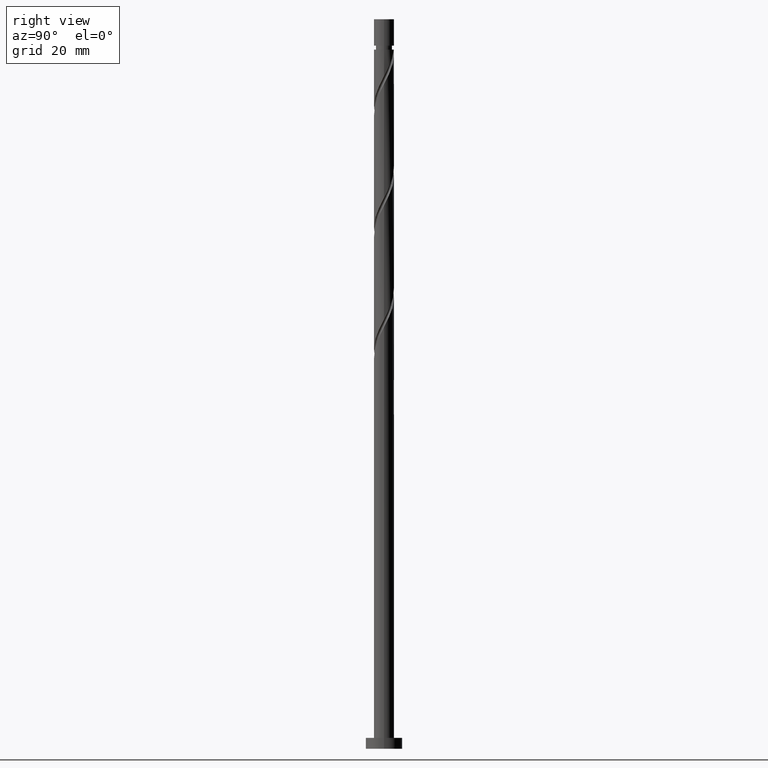
[diagram: clean part render]
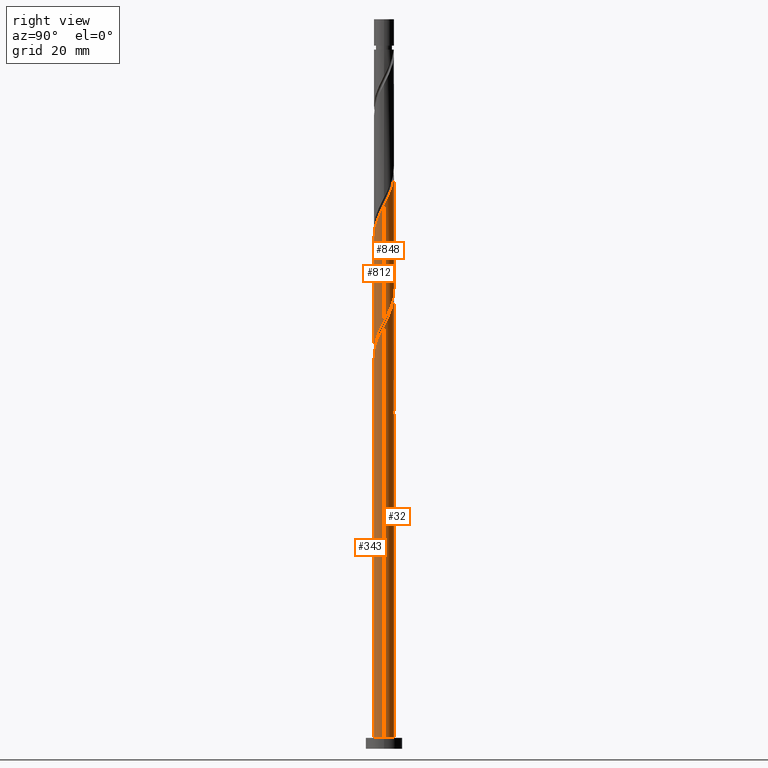
[diagram: same view with one multi-face feature highlighted, each face labeled with its STEP entity id]
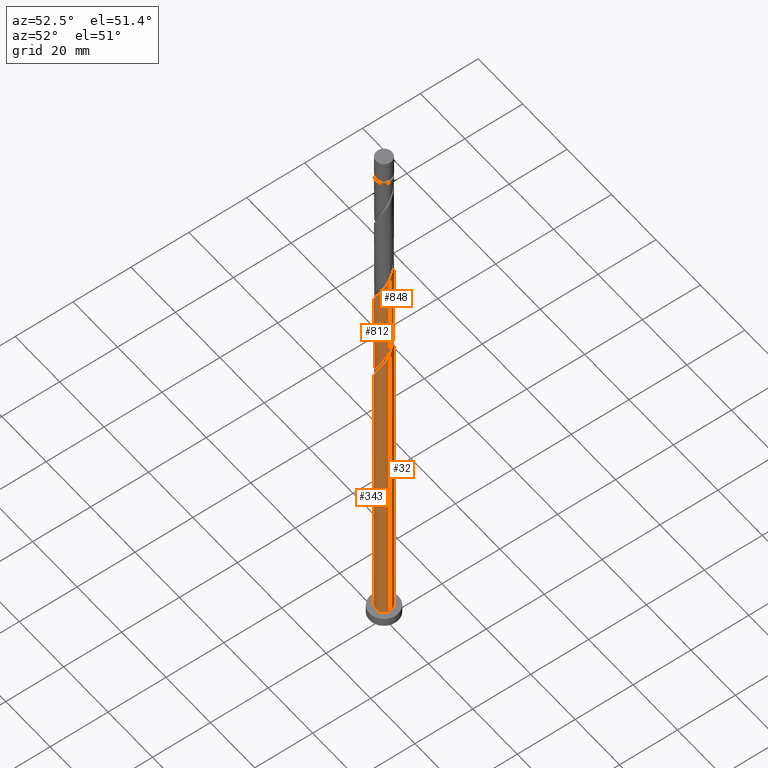
[diagram: same view with one multi-face feature highlighted, each face labeled with its STEP entity id]
A machine part, right view. The highlighted faces form ONE feature: a constant-radius fillet chain: 4 tangent blend faces with common blend radius 2.75 mm. The faces share edges in the B-rep.
A second angle (auxiliary view) of the same feature is appended — it is thin or edge-on in the first view.
Their STEP definitions:
[1] entity #848 (Cylinder):
#24 = ORIENTED_EDGE ( 'NONE', *, *, #1614, .F. ) ;
#40 = CARTESIAN_POINT ( 'NONE',  ( -2.750000000000001332, -1.166395186602363557E-14, 134.3802064279583419 ) ) ;
#64 =( BOUNDED_CURVE ( )  B_SPLINE_CURVE ( 2, ( #1214, #1617, #945, #1195, #1100, #691, #1204, #1188, #586, #960, #115, #435, #1313, #565, #419, #275, #817, #673, #1738, #1609, #1480, #834, #401, #257, #1340, #143, #1380 ),
 .UNSPECIFIED., .F., .T. ) 
 B_SPLINE_CURVE_WITH_KNOTS ( ( 3, 2, 2, 2, 2, 2, 2, 2, 2, 2, 2, 2, 2, 3 ),
 ( 0.4295317669814461836, 0.4375000000000000000, 0.4479166666666666297, 0.4583333333333333703, 0.4687500000000000000, 0.4791666666666666297, 0.4895833333333333703, 0.5000000000000000000, 0.5104166666666667407, 0.5208333333333332593, 0.5312500000000000000, 0.5416666666666667407, 0.5520833333333332593, 0.5545317669814461281 ),
 .UNSPECIFIED. ) 
 CURVE ( )  GEOMETRIC_REPRESENTATION_ITEM ( )  RATIONAL_B_SPLINE_CURVE ( ( 0.9062941362546527158, 0.9031415850403567980, 0.9090909090909321533, 0.9013135103398507431, 0.9090909090909321533, 0.9013135103398507431, 0.9090909090909321533, 0.9013135103398507431, 0.9090909090909321533, 0.9013135103398507431, 0.9090909090909321533, 0.9013135103398507431, 0.9090909090909321533, 0.9013135103398507431, 0.9090909090909321533, 0.9013135103398507431, 0.9090909090909321533, 0.9013135103398507431, 0.9090909090909321533, 0.9013135103398507431, 0.9090909090909321533, 0.9013135103398507431, 0.9090909090909321533, 0.9013135103398507431, 0.9090909090909321533, 0.9072628343904260984, 0.9062941362546527158 ) ) 
 REPRESENTATION_ITEM ( '' )  );
#84 = LINE ( 'NONE', #666, #1278 ) ;
#107 = CARTESIAN_POINT ( 'NONE',  ( 2.292612075483179801, 1.518693475112311342, 120.8166397727483172 ) ) ;
#115 = CARTESIAN_POINT ( 'NONE',  ( 0.8735735816606146065, 2.607560008403386753, 155.5388619949704889 ) ) ;
#140 = CARTESIAN_POINT ( 'NONE',  ( 2.750000000000000000, 3.367778697655221012E-16, 200.0000000000000000 ) ) ;
#143 = CARTESIAN_POINT ( 'NONE',  ( -2.750000000000004441, 0.08454036705860550061, 165.4232427628434436 ) ) ;
#160 = VERTEX_POINT ( 'NONE', #40 ) ;
#164 = EDGE_LOOP ( 'NONE', ( #1665, #917, #24, #755 ) ) ;
#210 = CARTESIAN_POINT ( 'NONE',  ( 2.750000000000003553, 6.131051621884181854E-16, 148.9197397842048360 ) ) ;
#257 = CARTESIAN_POINT ( 'NONE',  ( -2.722568152255372631, 0.5302817939452966201, 164.5666397727482320 ) ) ;
#274 = EDGE_CURVE ( 'NONE', #488, #160, #84, .T. ) ;
#275 = CARTESIAN_POINT ( 'NONE',  ( -0.9020465714066749907, 2.622954080360260232, 159.0110842171927175 ) ) ;
#291 = CARTESIAN_POINT ( 'NONE',  ( -0.8735735816606112758, 2.607560008403384089, 127.7610842171927317 ) ) ;
#401 = CARTESIAN_POINT ( 'NONE',  ( -2.607560008403386753, 0.8735735816606137183, 163.8721953283038886 ) ) ;
#419 = CARTESIAN_POINT ( 'NONE',  ( -0.5472430904086420522, 2.695000000000005169, 158.3166397727483172 ) ) ;
#421 = CARTESIAN_POINT ( 'NONE',  ( 1.550180550263816404, 2.300112255140785766, 122.8999731060816032 ) ) ;
#429 = CARTESIAN_POINT ( 'NONE',  ( 0.1924396094106104460, 2.767045919639743445, 125.6777508838594031 ) ) ;
#435 = CARTESIAN_POINT ( 'NONE',  ( 0.5302817939452983964, 2.722568152255372631, 156.2333064394149176 ) ) ;
#440 = CARTESIAN_POINT ( 'NONE',  ( 2.750000000000001332, 0.08454036705859847844, 117.8767034493198338 ) ) ;
#488 = VERTEX_POINT ( 'NONE', #830 ) ;
#504 = EDGE_CURVE ( 'NONE', #1331, #1015, #687, .T. ) ;
#527 = CARTESIAN_POINT ( 'NONE',  ( 2.750000000000000888, 3.289832577596409831E-15, 117.7135397612916847 ) ) ;
#556 = CARTESIAN_POINT ( 'NONE',  ( -0.5302817939452952878, 2.722568152255369078, 127.0666397727482604 ) ) ;
#565 = CARTESIAN_POINT ( 'NONE',  ( -0.1924396094106074206, 2.767045919639746554, 157.6221953283038602 ) ) ;
#579 = CARTESIAN_POINT ( 'NONE',  ( -1.820521580848695642, 2.092672286414962723, 129.8444175505260034 ) ) ;
#586 = CARTESIAN_POINT ( 'NONE',  ( 1.518693475112315117, 2.292612075483182910, 154.1499731060816316 ) ) ;
#621 = CARTESIAN_POINT ( 'NONE',  ( 2.722568152255369078, 0.5302817939452935114, 118.7333064394149602 ) ) ;
#623 = AXIS2_PLACEMENT_3D ( 'NONE', #914, #1148, #1694 ) ;
#666 = CARTESIAN_POINT ( 'NONE',  ( -2.750000000000000000, 0.000000000000000000, 200.0000000000000000 ) ) ;
#668 = CARTESIAN_POINT ( 'NONE',  ( -2.750000000000001332, 0.2763853991962823553, 133.8467800587690419 ) ) ;
#673 = CARTESIAN_POINT ( 'NONE',  ( -1.550180550263816848, 2.300112255140789763, 160.3999731060816032 ) ) ;
#683 = CARTESIAN_POINT ( 'NONE',  ( -2.461533167750521223, 1.226113560835245142, 131.9277508838593747 ) ) ;
#687 = LINE ( 'NONE', #140, #1078 ) ;
#691 = CARTESIAN_POINT ( 'NONE',  ( 2.300112255140790651, 1.550180550263815071, 152.0666397727482320 ) ) ;
#731 = CARTESIAN_POINT ( 'NONE',  ( 2.607560008403384089, 0.8735735816606096105, 119.4277508838594031 ) ) ;
#739 = CARTESIAN_POINT ( 'NONE',  ( 2.750000000000000888, 3.289832577596409831E-15, 117.7135397612916705 ) ) ;
#750 = CARTESIAN_POINT ( 'NONE',  ( 2.744807035947557150, 0.1689210922673411164, 118.0388619949705316 ) ) ;
#755 = ORIENTED_EDGE ( 'NONE', *, *, #274, .F. ) ;
#817 = CARTESIAN_POINT ( 'NONE',  ( -1.226113560835246030, 2.461533167750526552, 159.7055286616372314 ) ) ;
#826 = CARTESIAN_POINT ( 'NONE',  ( -2.300112255140786655, 1.550180550263814627, 131.2333064394149176 ) ) ;
#827 = CYLINDRICAL_SURFACE ( 'NONE', #623, 2.750000000000000000 ) ;
#830 = CARTESIAN_POINT ( 'NONE',  ( -2.750000000000004441, -1.428086414365705300E-15, 165.5864064508715785 ) ) ;
#834 = CARTESIAN_POINT ( 'NONE',  ( -2.492551864551399543, 1.216865369375929928, 163.1777508838593747 ) ) ;
#837 = CARTESIAN_POINT ( 'NONE',  ( -1.216865369375927264, 2.492551864551396879, 128.4555286616371461 ) ) ;
#847 = CARTESIAN_POINT ( 'NONE',  ( 2.092672286414963168, 1.820521580848694976, 121.5110842171927032 ) ) ;
#848 = ADVANCED_FACE ( 'NONE', ( #1076 ), #827, .T. ) ;
#914 = CARTESIAN_POINT ( 'NONE',  ( 0.000000000000000000, 0.000000000000000000, 200.0000000000000000 ) ) ;
#917 = ORIENTED_EDGE ( 'NONE', *, *, #504, .T. ) ;
#922 = EDGE_CURVE ( 'NONE', #1331, #488, #64, .T. ) ;
#945 = CARTESIAN_POINT ( 'NONE',  ( 2.695000000000005169, 0.5472430904086422743, 149.9833064394149744 ) ) ;
#960 = CARTESIAN_POINT ( 'NONE',  ( 1.216865369375930817, 2.492551864551399543, 154.8444175505260603 ) ) ;
#1015 = VERTEX_POINT ( 'NONE', #527 ) ;
#1060 = CARTESIAN_POINT ( 'NONE',  ( -2.622954080360256679, 0.9020465714066743246, 132.6221953283038317 ) ) ;
#1075 = CARTESIAN_POINT ( 'NONE',  ( -0.1689210922673423654, 2.744807035947557150, 126.3721953283038459 ) ) ;
#1076 = FACE_OUTER_BOUND ( 'NONE', #164, .T. ) ;
#1078 = VECTOR ( 'NONE', #1497, 1000.000000000000000 ) ;
#1100 = CARTESIAN_POINT ( 'NONE',  ( 2.461533167750526552, 1.226113560835245364, 151.3721953283038886 ) ) ;
#1148 = DIRECTION ( 'NONE',  ( -0.000000000000000000, -0.000000000000000000, -1.000000000000000000 ) ) ;
#1177 = DIRECTION ( 'NONE',  ( -0.000000000000000000, -0.000000000000000000, -1.000000000000000000 ) ) ;
#1181 = CARTESIAN_POINT ( 'NONE',  ( 2.492551864551397767, 1.216865369375925265, 120.1221953283038175 ) ) ;
#1188 = CARTESIAN_POINT ( 'NONE',  ( 1.820521580848700527, 2.092672286414963168, 153.4555286616371745 ) ) ;
#1189 = CARTESIAN_POINT ( 'NONE',  ( -2.060316917994740926, 1.821426418339388675, 130.5388619949704889 ) ) ;
#1195 = CARTESIAN_POINT ( 'NONE',  ( 2.622954080360260676, 0.9020465714066738805, 150.6777508838594031 ) ) ;
#1204 = CARTESIAN_POINT ( 'NONE',  ( 2.060316917994746255, 1.821426418339390008, 152.7610842171926890 ) ) ;
#1214 = CARTESIAN_POINT ( 'NONE',  ( 2.750000000000003553, 6.131051621884181854E-16, 148.9197397842048076 ) ) ;
#1278 = VECTOR ( 'NONE', #1177, 1000.000000000000000 ) ;
#1313 = CARTESIAN_POINT ( 'NONE',  ( 0.1689210922673453630, 2.744807035947560259, 156.9277508838594883 ) ) ;
#1323 = CARTESIAN_POINT ( 'NONE',  ( -2.695000000000000284, 0.5472430904086426073, 133.3166397727482320 ) ) ;
#1331 = VERTEX_POINT ( 'NONE', #210 ) ;
#1332 = CARTESIAN_POINT ( 'NONE',  ( 0.9020465714066763230, 2.622954080360255791, 124.2888619949704889 ) ) ;
#1340 = CARTESIAN_POINT ( 'NONE',  ( -2.744807035947560259, 0.1689210922673436699, 165.2610842171927743 ) ) ;
#1380 = CARTESIAN_POINT ( 'NONE',  ( -2.750000000000004441, -1.428086414365705300E-15, 165.5864064508715785 ) ) ;
#1437 =( BOUNDED_CURVE ( )  B_SPLINE_CURVE ( 2, ( #1618, #668, #1323, #1060, #683, #826, #1189, #579, #1734, #837, #291, #556, #1075, #429, #1472, #1332, #1625, #421, #1481, #847, #107, #1181, #731, #621, #750, #440, #739 ),
 .UNSPECIFIED., .F., .T. ) 
 B_SPLINE_CURVE_WITH_KNOTS ( ( 3, 2, 2, 2, 2, 2, 2, 2, 2, 2, 2, 2, 2, 3 ),
 ( 0.6795317669814462391, 0.6875000000000000000, 0.6979166666666666297, 0.7083333333333333703, 0.7187500000000000000, 0.7291666666666666297, 0.7395833333333333703, 0.7500000000000000000, 0.7604166666666666297, 0.7708333333333333703, 0.7812500000000000000, 0.7916666666666666297, 0.8020833333333333703, 0.8045317669814463502 ),
 .UNSPECIFIED. ) 
 CURVE ( )  GEOMETRIC_REPRESENTATION_ITEM ( )  RATIONAL_B_SPLINE_CURVE ( ( 0.9062941362546469426, 0.9031415850403510248, 0.9090909090909264911, 0.9013135103398449699, 0.9090909090909264911, 0.9013135103398449699, 0.9090909090909264911, 0.9013135103398449699, 0.9090909090909264911, 0.9013135103398449699, 0.9090909090909264911, 0.9013135103398449699, 0.9090909090909264911, 0.9013135103398449699, 0.9090909090909264911, 0.9013135103398449699, 0.9090909090909264911, 0.9013135103398449699, 0.9090909090909264911, 0.9013135103398449699, 0.9090909090909264911, 0.9013135103398449699, 0.9090909090909264911, 0.9013135103398449699, 0.9090909090909264911, 0.9072628343904202142, 0.9062941362546468316 ) ) 
 REPRESENTATION_ITEM ( '' )  );
#1472 = CARTESIAN_POINT ( 'NONE',  ( 0.5472430904086429404, 2.695000000000000284, 124.9833064394149460 ) ) ;
#1480 = CARTESIAN_POINT ( 'NONE',  ( -2.292612075483183798, 1.518693475112314450, 162.4833064394149460 ) ) ;
#1481 = CARTESIAN_POINT ( 'NONE',  ( 1.821426418339390008, 2.060316917994740038, 122.2055286616371603 ) ) ;
#1497 = DIRECTION ( 'NONE',  ( -0.000000000000000000, -0.000000000000000000, -1.000000000000000000 ) ) ;
#1609 = CARTESIAN_POINT ( 'NONE',  ( -2.092672286414964500, 1.820521580848698751, 161.7888619949704605 ) ) ;
#1614 = EDGE_CURVE ( 'NONE', #160, #1015, #1437, .T. ) ;
#1617 = CARTESIAN_POINT ( 'NONE',  ( 2.750000000000005329, 0.2763853991962778034, 149.4531661533941360 ) ) ;
#1618 = CARTESIAN_POINT ( 'NONE',  ( -2.750000000000001332, -1.166395186602363557E-14, 134.3802064279583419 ) ) ;
#1625 = CARTESIAN_POINT ( 'NONE',  ( 1.226113560835246474, 2.461533167750521223, 123.5944175505260461 ) ) ;
#1665 = ORIENTED_EDGE ( 'NONE', *, *, #922, .F. ) ;
#1694 = DIRECTION ( 'NONE',  ( -1.000000000000000000, 0.000000000000000000, 0.000000000000000000 ) ) ;
#1734 = CARTESIAN_POINT ( 'NONE',  ( -1.518693475112312008, 2.292612075483179801, 129.1499731060816316 ) ) ;
#1738 = CARTESIAN_POINT ( 'NONE',  ( -1.821426418339391118, 2.060316917994744479, 161.0944175505260887 ) ) ;
[2] entity #812 (Cylinder):
#20 = CARTESIAN_POINT ( 'NONE',  ( 2.492551864551399099, -1.216865369375930817, 146.5110842171927175 ) ) ;
#63 = CARTESIAN_POINT ( 'NONE',  ( -0.9020465714066749907, -2.622954080360256679, 107.6221953283038175 ) ) ;
#73 = CARTESIAN_POINT ( 'NONE',  ( -2.722568152255369078, -0.5302817939452942886, 102.0666397727482604 ) ) ;
#90 = EDGE_CURVE ( 'NONE', #703, #682, #1520, .T. ) ;
#94 = CARTESIAN_POINT ( 'NONE',  ( 1.518693475112310676, -2.292612075483180689, 112.4833064394149460 ) ) ;
#109 = CYLINDRICAL_SURFACE ( 'NONE', #757, 2.750000000000000000 ) ;
#139 = CARTESIAN_POINT ( 'NONE',  ( 1.226113560835245364, -2.461533167750526552, 143.0388619949706026 ) ) ;
#140 = CARTESIAN_POINT ( 'NONE',  ( 2.750000000000000000, 3.367778697655221012E-16, 200.0000000000000000 ) ) ;
#148 = CARTESIAN_POINT ( 'NONE',  ( -2.060316917994744479, -1.821426418339390896, 136.0944175505260887 ) ) ;
#155 = CARTESIAN_POINT ( 'NONE',  ( -0.5302817939452966201, -2.722568152255372631, 139.5666397727482604 ) ) ;
#186 =( BOUNDED_CURVE ( )  B_SPLINE_CURVE ( 2, ( #1689, #1597, #1174, #1554, #1706, #1293, #517, #1166, #94, #762, #632, #1716, #1040, #526, #891, #63, #1049, #1576, #1408, #1584, #212, #769, #1276, #73, #1308, #1463, #570 ),
 .UNSPECIFIED., .F., .T. ) 
 B_SPLINE_CURVE_WITH_KNOTS ( ( 3, 2, 2, 2, 2, 2, 2, 2, 2, 2, 2, 2, 2, 3 ),
 ( 0.8045317669814463502, 0.8125000000000000000, 0.8229166666666666297, 0.8333333333333333703, 0.8437500000000000000, 0.8541666666666666297, 0.8645833333333333703, 0.8750000000000000000, 0.8854166666666666297, 0.8958333333333333703, 0.9062500000000000000, 0.9166666666666666297, 0.9270833333333333703, 0.9295317669814464612 ),
 .UNSPECIFIED. ) 
 CURVE ( )  GEOMETRIC_REPRESENTATION_ITEM ( )  RATIONAL_B_SPLINE_CURVE ( ( 0.9062941362546468316, 0.9031415850403511358, 0.9090909090909264911, 0.9013135103398449699, 0.9090909090909264911, 0.9013135103398449699, 0.9090909090909264911, 0.9013135103398449699, 0.9090909090909264911, 0.9013135103398449699, 0.9090909090909264911, 0.9013135103398449699, 0.9090909090909264911, 0.9013135103398449699, 0.9090909090909264911, 0.9013135103398449699, 0.9090909090909264911, 0.9013135103398449699, 0.9090909090909264911, 0.9013135103398449699, 0.9090909090909264911, 0.9013135103398449699, 0.9090909090909264911, 0.9013135103398449699, 0.9090909090909264911, 0.9072628343904202142, 0.9062941362546468316 ) ) 
 REPRESENTATION_ITEM ( '' )  );
#204 = CARTESIAN_POINT ( 'NONE',  ( -2.750000000000003553, 5.323547261928703378E-15, 132.2530731175381788 ) ) ;
#210 = CARTESIAN_POINT ( 'NONE',  ( 2.750000000000003553, 6.131051621884181854E-16, 148.9197397842048360 ) ) ;
#212 = CARTESIAN_POINT ( 'NONE',  ( -2.292612075483178913, -1.518693475112311564, 104.1499731060815890 ) ) ;
#253 = CARTESIAN_POINT ( 'NONE',  ( -2.461533167750526552, -1.226113560835245808, 134.7055286616372030 ) ) ;
#263 = CARTESIAN_POINT ( 'NONE',  ( -0.1689210922673437254, -2.744807035947560259, 140.2610842171927743 ) ) ;
#269 = CARTESIAN_POINT ( 'NONE',  ( -2.750000000000003553, 5.323547261928703378E-15, 132.2530731175381788 ) ) ;
#348 = ORIENTED_EDGE ( 'NONE', *, *, #1113, .F. ) ;
#398 = ORIENTED_EDGE ( 'NONE', *, *, #504, .F. ) ;
#412 = CARTESIAN_POINT ( 'NONE',  ( 0.1924396094106092248, -2.767045919639746554, 140.9555286616371745 ) ) ;
#422 = CARTESIAN_POINT ( 'NONE',  ( -1.216865369375930817, -2.492551864551399099, 138.1777508838593462 ) ) ;
#424 = VECTOR ( 'NONE', #892, 1000.000000000000000 ) ;
#504 = EDGE_CURVE ( 'NONE', #1331, #1015, #687, .T. ) ;
#517 = CARTESIAN_POINT ( 'NONE',  ( 2.060316917994740482, -1.821426418339390008, 113.8721953283038459 ) ) ;
#526 = CARTESIAN_POINT ( 'NONE',  ( -0.1924396094106113064, -2.767045919639743445, 109.0110842171927317 ) ) ;
#527 = CARTESIAN_POINT ( 'NONE',  ( 2.750000000000000888, 3.289832577596409831E-15, 117.7135397612916847 ) ) ;
#558 = CARTESIAN_POINT ( 'NONE',  ( -1.820521580848699195, -2.092672286414964056, 136.7888619949704889 ) ) ;
#570 = CARTESIAN_POINT ( 'NONE',  ( -2.750000000000000888, 3.686107865352342205E-15, 101.0468730946249991 ) ) ;
#572 = CARTESIAN_POINT ( 'NONE',  ( 1.821426418339390452, -2.060316917994745367, 144.4277508838594315 ) ) ;
#591 = CARTESIAN_POINT ( 'NONE',  ( 2.607560008403387641, -0.8735735816606146065, 147.2055286616372314 ) ) ;
#632 = CARTESIAN_POINT ( 'NONE',  ( 0.8735735816606108317, -2.607560008403384089, 111.0944175505260603 ) ) ;
#676 = CARTESIAN_POINT ( 'NONE',  ( -2.750000000000007105, -0.2763853991962700318, 132.7864994867274788 ) ) ;
#682 = VERTEX_POINT ( 'NONE', #926 ) ;
#684 =( BOUNDED_CURVE ( )  B_SPLINE_CURVE ( 2, ( #269, #676, #1495, #1086, #253, #849, #148, #558, #1751, #422, #1464, #155, #263, #412, #955, #693, #139, #714, #572, #1482, #1228, #20, #591, #1342, #838, #1218, #1455 ),
 .UNSPECIFIED., .F., .T. ) 
 B_SPLINE_CURVE_WITH_KNOTS ( ( 3, 2, 2, 2, 2, 2, 2, 2, 2, 2, 2, 2, 2, 3 ),
 ( 0.3045317669814459061, 0.3125000000000000000, 0.3229166666666666297, 0.3333333333333333703, 0.3437500000000000000, 0.3541666666666666297, 0.3645833333333333703, 0.3750000000000000000, 0.3854166666666666297, 0.3958333333333333703, 0.4062500000000000000, 0.4166666666666666297, 0.4270833333333333703, 0.4295317669814461836 ),
 .UNSPECIFIED. ) 
 CURVE ( )  GEOMETRIC_REPRESENTATION_ITEM ( )  RATIONAL_B_SPLINE_CURVE ( ( 0.9062941362546528268, 0.9031415850403565759, 0.9090909090909321533, 0.9013135103398507431, 0.9090909090909321533, 0.9013135103398507431, 0.9090909090909321533, 0.9013135103398507431, 0.9090909090909321533, 0.9013135103398507431, 0.9090909090909321533, 0.9013135103398507431, 0.9090909090909321533, 0.9013135103398507431, 0.9090909090909321533, 0.9013135103398507431, 0.9090909090909321533, 0.9013135103398507431, 0.9090909090909321533, 0.9013135103398507431, 0.9090909090909321533, 0.9013135103398507431, 0.9090909090909321533, 0.9013135103398507431, 0.9090909090909321533, 0.9072628343904260984, 0.9062941362546527158 ) ) 
 REPRESENTATION_ITEM ( '' )  );
#687 = LINE ( 'NONE', #140, #1078 ) ;
#693 = CARTESIAN_POINT ( 'NONE',  ( 0.9020465714066741025, -2.622954080360260676, 142.3444175505260034 ) ) ;
#703 = VERTEX_POINT ( 'NONE', #204 ) ;
#714 = CARTESIAN_POINT ( 'NONE',  ( 1.550180550263815515, -2.300112255140790651, 143.7333064394149460 ) ) ;
#757 = AXIS2_PLACEMENT_3D ( 'NONE', #934, #1183, #1197 ) ;
#761 = ORIENTED_EDGE ( 'NONE', *, *, #763, .F. ) ;
#762 = CARTESIAN_POINT ( 'NONE',  ( 1.216865369375926598, -2.492551864551396879, 111.7888619949704889 ) ) ;
#763 = EDGE_CURVE ( 'NONE', #1015, #682, #186, .T. ) ;
#769 = CARTESIAN_POINT ( 'NONE',  ( -2.492551864551396879, -1.216865369375926598, 103.4555286616371319 ) ) ;
#812 = ADVANCED_FACE ( 'NONE', ( #1085 ), #109, .T. ) ;
#838 = CARTESIAN_POINT ( 'NONE',  ( 2.744807035947560259, -0.1689210922673452520, 148.5944175505260318 ) ) ;
#849 = CARTESIAN_POINT ( 'NONE',  ( -2.300112255140790207, -1.550180550263816182, 135.3999731060816316 ) ) ;
#852 = EDGE_LOOP ( 'NONE', ( #398, #348, #989, #761 ) ) ;
#891 = CARTESIAN_POINT ( 'NONE',  ( -0.5472430904086426073, -2.695000000000000284, 108.3166397727482888 ) ) ;
#892 = DIRECTION ( 'NONE',  ( -0.000000000000000000, -0.000000000000000000, -1.000000000000000000 ) ) ;
#926 = CARTESIAN_POINT ( 'NONE',  ( -2.750000000000000888, 3.686107865352342205E-15, 101.0468730946249991 ) ) ;
#934 = CARTESIAN_POINT ( 'NONE',  ( 0.000000000000000000, 0.000000000000000000, 200.0000000000000000 ) ) ;
#955 = CARTESIAN_POINT ( 'NONE',  ( 0.5472430904086423853, -2.695000000000005169, 141.6499731060816600 ) ) ;
#989 = ORIENTED_EDGE ( 'NONE', *, *, #90, .T. ) ;
#1015 = VERTEX_POINT ( 'NONE', #527 ) ;
#1040 = CARTESIAN_POINT ( 'NONE',  ( 0.1689210922673411996, -2.744807035947557150, 109.7055286616372030 ) ) ;
#1049 = CARTESIAN_POINT ( 'NONE',  ( -1.226113560835245142, -2.461533167750521223, 106.9277508838593889 ) ) ;
#1078 = VECTOR ( 'NONE', #1497, 1000.000000000000000 ) ;
#1085 = FACE_OUTER_BOUND ( 'NONE', #852, .T. ) ;
#1086 = CARTESIAN_POINT ( 'NONE',  ( -2.622954080360260676, -0.9020465714066742136, 134.0110842171926890 ) ) ;
#1113 = EDGE_CURVE ( 'NONE', #703, #1331, #684, .T. ) ;
#1166 = CARTESIAN_POINT ( 'NONE',  ( 1.820521580848694976, -2.092672286414962723, 113.1777508838593747 ) ) ;
#1174 = CARTESIAN_POINT ( 'NONE',  ( 2.695000000000000284, -0.5472430904086429404, 116.6499731060816316 ) ) ;
#1183 = DIRECTION ( 'NONE',  ( -0.000000000000000000, -0.000000000000000000, -1.000000000000000000 ) ) ;
#1197 = DIRECTION ( 'NONE',  ( -1.000000000000000000, 0.000000000000000000, 0.000000000000000000 ) ) ;
#1218 = CARTESIAN_POINT ( 'NONE',  ( 2.750000000000003109, -0.08454036705860824841, 148.7565760961766443 ) ) ;
#1228 = CARTESIAN_POINT ( 'NONE',  ( 2.292612075483182466, -1.518693475112315561, 145.8166397727482888 ) ) ;
#1261 = CARTESIAN_POINT ( 'NONE',  ( -2.750000000000000000, 0.000000000000000000, 200.0000000000000000 ) ) ;
#1276 = CARTESIAN_POINT ( 'NONE',  ( -2.607560008403384089, -0.8735735816606111648, 102.7610842171927317 ) ) ;
#1293 = CARTESIAN_POINT ( 'NONE',  ( 2.300112255140785766, -1.550180550263815960, 114.5666397727482604 ) ) ;
#1308 = CARTESIAN_POINT ( 'NONE',  ( -2.744807035947557150, -0.1689210922673420323, 101.3721953283038459 ) ) ;
#1331 = VERTEX_POINT ( 'NONE', #210 ) ;
#1342 = CARTESIAN_POINT ( 'NONE',  ( 2.722568152255372631, -0.5302817939452981744, 147.8999731060815748 ) ) ;
#1408 = CARTESIAN_POINT ( 'NONE',  ( -1.821426418339389341, -2.060316917994740926, 105.5388619949705031 ) ) ;
#1455 = CARTESIAN_POINT ( 'NONE',  ( 2.750000000000003553, 6.131051621884181854E-16, 148.9197397842048076 ) ) ;
#1463 = CARTESIAN_POINT ( 'NONE',  ( -2.750000000000001332, -0.08454036705859545309, 101.2100367826531340 ) ) ;
#1464 = CARTESIAN_POINT ( 'NONE',  ( -0.8735735816606143844, -2.607560008403386753, 138.8721953283038317 ) ) ;
#1482 = CARTESIAN_POINT ( 'NONE',  ( 2.092672286414964056, -1.820521580848699195, 145.1221953283038033 ) ) ;
#1495 = CARTESIAN_POINT ( 'NONE',  ( -2.695000000000005169, -0.5472430904086424963, 133.3166397727483172 ) ) ;
#1497 = DIRECTION ( 'NONE',  ( -0.000000000000000000, -0.000000000000000000, -1.000000000000000000 ) ) ;
#1520 = LINE ( 'NONE', #1261, #424 ) ;
#1554 = CARTESIAN_POINT ( 'NONE',  ( 2.622954080360255791, -0.9020465714066763230, 115.9555286616371461 ) ) ;
#1576 = CARTESIAN_POINT ( 'NONE',  ( -1.550180550263814627, -2.300112255140786655, 106.2333064394149318 ) ) ;
#1584 = CARTESIAN_POINT ( 'NONE',  ( -2.092672286414962723, -1.820521580848694976, 104.8444175505260461 ) ) ;
#1597 = CARTESIAN_POINT ( 'NONE',  ( 2.750000000000000444, -0.2763853991962864076, 117.1801133921023990 ) ) ;
#1689 = CARTESIAN_POINT ( 'NONE',  ( 2.750000000000000888, 3.289832577596409831E-15, 117.7135397612916705 ) ) ;
#1706 = CARTESIAN_POINT ( 'NONE',  ( 2.461533167750521223, -1.226113560835246474, 115.2610842171927317 ) ) ;
#1716 = CARTESIAN_POINT ( 'NONE',  ( 0.5302817939452937335, -2.722568152255369078, 110.3999731060816458 ) ) ;
#1751 = CARTESIAN_POINT ( 'NONE',  ( -1.518693475112314450, -2.292612075483183354, 137.4833064394149744 ) ) ;
[3] entity #32 (Cylinder):
#5 = CARTESIAN_POINT ( 'NONE',  ( -2.750000000000003553, -2.340267265426522657E-15, 98.91973978420490710 ) ) ;
#9 = DIRECTION ( 'NONE',  ( -0.000000000000000000, -0.000000000000000000, -1.000000000000000000 ) ) ;
#28 = VECTOR ( 'NONE', #359, 1000.000000000000000 ) ;
#32 = ADVANCED_FACE ( 'NONE', ( #1337 ), #425, .T. ) ;
#36 = CARTESIAN_POINT ( 'NONE',  ( -0.5472430904086420522, 2.695000000000005169, 91.64997310608161740 ) ) ;
#54 = AXIS2_PLACEMENT_3D ( 'NONE', #238, #1690, #355 ) ;
#56 = CIRCLE ( 'NONE', #54, 2.750000000000000000 ) ;
#61 = CARTESIAN_POINT ( 'NONE',  ( -0.9020465714066749907, 2.622954080360260232, 92.34441755052606027 ) ) ;
#90 = EDGE_CURVE ( 'NONE', #703, #682, #1520, .T. ) ;
#119 = ORIENTED_EDGE ( 'NONE', *, *, #868, .F. ) ;
#121 = CARTESIAN_POINT ( 'NONE',  ( -2.622954080360256679, 0.9020465714066743246, 99.28886199497048892 ) ) ;
#157 = DIRECTION ( 'NONE',  ( -1.000000000000000000, 0.000000000000000000, 0.000000000000000000 ) ) ;
#162 = CARTESIAN_POINT ( 'NONE',  ( -1.821426418339391118, 2.060316917994744479, 94.42775088385940307 ) ) ;
#174 = CARTESIAN_POINT ( 'NONE',  ( -2.607560008403386753, 0.8735735816606137183, 97.20552866163718875 ) ) ;
#185 = CARTESIAN_POINT ( 'NONE',  ( -1.821426418339391118, 2.060316917994744479, 127.7610842171927317 ) ) ;
#200 = CARTESIAN_POINT ( 'NONE',  ( -2.750000000000003553, 5.323547261928703378E-15, 132.2530731175381788 ) ) ;
#204 = CARTESIAN_POINT ( 'NONE',  ( -2.750000000000003553, 5.323547261928703378E-15, 132.2530731175381788 ) ) ;
#220 = AXIS2_PLACEMENT_3D ( 'NONE', #650, #1599, #803 ) ;
#238 = CARTESIAN_POINT ( 'NONE',  ( 0.000000000000000000, 0.000000000000000000, 3.000000000000000000 ) ) ;
#264 = ORIENTED_EDGE ( 'NONE', *, *, #1185, .F. ) ;
#279 = CARTESIAN_POINT ( 'NONE',  ( 0.1924396094106104460, 2.767045919639743445, 92.34441755052604606 ) ) ;
#304 = CARTESIAN_POINT ( 'NONE',  ( 2.750000000000003553, 6.131051621884181854E-16, 115.5864064508715501 ) ) ;
#305 = EDGE_CURVE ( 'NONE', #776, #395, #1516, .T. ) ;
#313 = CARTESIAN_POINT ( 'NONE',  ( 1.216865369375930817, 2.492551864551399543, 121.5110842171927032 ) ) ;
#324 = CARTESIAN_POINT ( 'NONE',  ( -2.750000000000000000, 0.000000000000000000, 3.000000000000000000 ) ) ;
#334 = CARTESIAN_POINT ( 'NONE',  ( 2.461533167750526552, 1.226113560835245364, 118.0388619949705458 ) ) ;
#355 = DIRECTION ( 'NONE',  ( 1.000000000000000000, 0.000000000000000000, 0.000000000000000000 ) ) ;
#359 = DIRECTION ( 'NONE',  ( -0.000000000000000000, -0.000000000000000000, -1.000000000000000000 ) ) ;
#363 = EDGE_CURVE ( 'NONE', #1157, #1126, #1057, .T. ) ;
#395 = VERTEX_POINT ( 'NONE', #1588 ) ;
#403 = ORIENTED_EDGE ( 'NONE', *, *, #363, .T. ) ;
#424 = VECTOR ( 'NONE', #892, 1000.000000000000000 ) ;
#425 = CYLINDRICAL_SURFACE ( 'NONE', #991, 2.750000000000000000 ) ;
#438 = EDGE_CURVE ( 'NONE', #1126, #1264, #56, .T. ) ;
#442 = CARTESIAN_POINT ( 'NONE',  ( 2.750000000000005329, 0.2763853991962769152, 116.1198328200608074 ) ) ;
#443 =( BOUNDED_CURVE ( )  B_SPLINE_CURVE ( 2, ( #304, #442, #752, #612, #334, #599, #1130, #1681, #1362, #313, #1258, #1646, #607, #1658, #724, #996, #483, #1012, #185, #864, #979, #1369, #1244, #987, #1251, #889, #200 ),
 .UNSPECIFIED., .F., .T. ) 
 B_SPLINE_CURVE_WITH_KNOTS ( ( 3, 2, 2, 2, 2, 2, 2, 2, 2, 2, 2, 2, 2, 3 ),
 ( 0.1795317669814461559, 0.1875000000000000000, 0.1979166666666666297, 0.2083333333333333703, 0.2187500000000000000, 0.2291666666666666297, 0.2395833333333333703, 0.2500000000000000000, 0.2604166666666666297, 0.2708333333333333703, 0.2812500000000000000, 0.2916666666666666297, 0.3020833333333333703, 0.3045317669814459061 ),
 .UNSPECIFIED. ) 
 CURVE ( )  GEOMETRIC_REPRESENTATION_ITEM ( )  RATIONAL_B_SPLINE_CURVE ( ( 0.9062941362546527158, 0.9031415850403567980, 0.9090909090909321533, 0.9013135103398507431, 0.9090909090909321533, 0.9013135103398507431, 0.9090909090909321533, 0.9013135103398507431, 0.9090909090909321533, 0.9013135103398507431, 0.9090909090909321533, 0.9013135103398507431, 0.9090909090909321533, 0.9013135103398507431, 0.9090909090909321533, 0.9013135103398507431, 0.9090909090909321533, 0.9013135103398507431, 0.9090909090909321533, 0.9013135103398507431, 0.9090909090909321533, 0.9013135103398507431, 0.9090909090909321533, 0.9013135103398507431, 0.9090909090909321533, 0.9072628343904262094, 0.9062941362546528268 ) ) 
 REPRESENTATION_ITEM ( '' )  );
#451 = CARTESIAN_POINT ( 'NONE',  ( -2.492551864551399543, 1.216865369375929928, 96.51108421719271746 ) ) ;
#474 = CARTESIAN_POINT ( 'NONE',  ( -2.750000000000003553, -2.340267265426522657E-15, 98.91973978420490710 ) ) ;
#483 = CARTESIAN_POINT ( 'NONE',  ( -1.226113560835246030, 2.461533167750526552, 126.3721953283038744 ) ) ;
#503 = LINE ( 'NONE', #1027, #28 ) ;
#524 =( BOUNDED_CURVE ( )  B_SPLINE_CURVE ( 2, ( #36, #61, #1106, #1385, #162, #1235, #1116, #451, #174, #1676, #1124, #1517, #474 ),
 .UNSPECIFIED., .F., .T. ) 
 B_SPLINE_CURVE_WITH_KNOTS ( ( 3, 2, 2, 2, 2, 2, 3 ),
 ( 0.000000000000000000, 0.01041666666666662966, 0.02083333333333337034, 0.03125000000000000000, 0.04166666666666662966, 0.05208333333333337034, 0.05453176698144625301 ),
 .UNSPECIFIED. ) 
 CURVE ( )  GEOMETRIC_REPRESENTATION_ITEM ( )  RATIONAL_B_SPLINE_CURVE ( ( 0.9090909090909321533, 0.9013135103398507431, 0.9090909090909321533, 0.9013135103398507431, 0.9090909090909321533, 0.9013135103398507431, 0.9090909090909321533, 0.9013135103398507431, 0.9090909090909321533, 0.9013135103398507431, 0.9090909090909321533, 0.9072628343904259873, 0.9062941362546526047 ) ) 
 REPRESENTATION_ITEM ( '' )  );
#549 = CARTESIAN_POINT ( 'NONE',  ( -1.820521580848695642, 2.092672286414962723, 96.51108421719271746 ) ) ;
#581 = CARTESIAN_POINT ( 'NONE',  ( -2.750000000000000888, 3.686107865352342205E-15, 101.0468730946249991 ) ) ;
#599 = CARTESIAN_POINT ( 'NONE',  ( 2.300112255140790651, 1.550180550263815071, 118.7333064394149318 ) ) ;
#607 = CARTESIAN_POINT ( 'NONE',  ( 0.1689210922673453630, 2.744807035947560259, 123.5944175505260745 ) ) ;
#612 = CARTESIAN_POINT ( 'NONE',  ( 2.622954080360260676, 0.9020465714066738805, 117.3444175505260603 ) ) ;
#622 = CARTESIAN_POINT ( 'NONE',  ( 2.750000000000003553, 6.131051621884181854E-16, 115.5864064508715501 ) ) ;
#631 = ORIENTED_EDGE ( 'NONE', *, *, #1230, .F. ) ;
#650 = CARTESIAN_POINT ( 'NONE',  ( 0.000000000000000000, 0.000000000000000000, 91.64997310608167425 ) ) ;
#682 = VERTEX_POINT ( 'NONE', #926 ) ;
#685 = CARTESIAN_POINT ( 'NONE',  ( -2.461533167750521223, 1.226113560835245142, 98.59441755052608869 ) ) ;
#703 = VERTEX_POINT ( 'NONE', #204 ) ;
#724 = CARTESIAN_POINT ( 'NONE',  ( -0.5472430904086420522, 2.695000000000005169, 124.9833064394150028 ) ) ;
#752 = CARTESIAN_POINT ( 'NONE',  ( 2.695000000000005169, 0.5472430904086422743, 116.6499731060816600 ) ) ;
#776 = VERTEX_POINT ( 'NONE', #1750 ) ;
#803 = DIRECTION ( 'NONE',  ( 0.000000000000000000, 1.000000000000000000, -2.523234146875355860E-14 ) ) ;
#809 = CARTESIAN_POINT ( 'NONE',  ( -0.8735735816606112758, 2.607560008403384089, 94.42775088385938886 ) ) ;
#828 = CARTESIAN_POINT ( 'NONE',  ( -0.1689210922673423654, 2.744807035947557150, 93.03886199497047471 ) ) ;
#840 = CARTESIAN_POINT ( 'NONE',  ( 0.000000000000000000, 0.000000000000000000, 200.0000000000000000 ) ) ;
#864 = CARTESIAN_POINT ( 'NONE',  ( -2.092672286414964500, 1.820521580848698751, 128.4555286616371461 ) ) ;
#868 = EDGE_CURVE ( 'NONE', #1561, #1264, #503, .T. ) ;
#875 = ORIENTED_EDGE ( 'NONE', *, *, #90, .F. ) ;
#889 = CARTESIAN_POINT ( 'NONE',  ( -2.750000000000003109, 0.08454036705861611711, 132.0899094295100440 ) ) ;
#892 = DIRECTION ( 'NONE',  ( -0.000000000000000000, -0.000000000000000000, -1.000000000000000000 ) ) ;
#926 = CARTESIAN_POINT ( 'NONE',  ( -2.750000000000000888, 3.686107865352342205E-15, 101.0468730946249991 ) ) ;
#972 = CARTESIAN_POINT ( 'NONE',  ( -2.060316917994740926, 1.821426418339388675, 97.20552866163720296 ) ) ;
#979 = CARTESIAN_POINT ( 'NONE',  ( -2.292612075483183798, 1.518693475112314450, 129.1499731060816316 ) ) ;
#987 = CARTESIAN_POINT ( 'NONE',  ( -2.722568152255372631, 0.5302817939452966201, 131.2333064394149460 ) ) ;
#991 = AXIS2_PLACEMENT_3D ( 'NONE', #840, #9, #157 ) ;
#996 = CARTESIAN_POINT ( 'NONE',  ( -0.9020465714066749907, 2.622954080360260232, 125.6777508838594031 ) ) ;
#1012 = CARTESIAN_POINT ( 'NONE',  ( -1.550180550263816848, 2.300112255140789763, 127.0666397727482888 ) ) ;
#1025 = VECTOR ( 'NONE', #1556, 1000.000000000000000 ) ;
#1027 = CARTESIAN_POINT ( 'NONE',  ( -2.750000000000000000, 0.000000000000000000, 200.0000000000000000 ) ) ;
#1034 = CARTESIAN_POINT ( 'NONE',  ( 2.750000000000000000, 3.367778697655221012E-16, 200.0000000000000000 ) ) ;
#1041 = EDGE_CURVE ( 'NONE', #682, #395, #1333, .T. ) ;
#1057 = LINE ( 'NONE', #1034, #1025 ) ;
#1070 = CARTESIAN_POINT ( 'NONE',  ( 0.5472430904086429404, 2.695000000000000284, 91.64997310608161740 ) ) ;
#1092 = ORIENTED_EDGE ( 'NONE', *, *, #1041, .F. ) ;
#1103 = ORIENTED_EDGE ( 'NONE', *, *, #438, .T. ) ;
#1106 = CARTESIAN_POINT ( 'NONE',  ( -1.226113560835246030, 2.461533167750526552, 93.03886199497051734 ) ) ;
#1116 = CARTESIAN_POINT ( 'NONE',  ( -2.292612075483183798, 1.518693475112314450, 95.81663977274831723 ) ) ;
#1124 = CARTESIAN_POINT ( 'NONE',  ( -2.744807035947560259, 0.1689210922673436699, 98.59441755052608869 ) ) ;
#1126 = VERTEX_POINT ( 'NONE', #1137 ) ;
#1130 = CARTESIAN_POINT ( 'NONE',  ( 2.060316917994746255, 1.821426418339390008, 119.4277508838594031 ) ) ;
#1137 = CARTESIAN_POINT ( 'NONE',  ( 2.750000000000000000, 3.367778697655221012E-16, 3.000000000000000000 ) ) ;
#1157 = VERTEX_POINT ( 'NONE', #622 ) ;
#1185 = EDGE_CURVE ( 'NONE', #1157, #703, #443, .T. ) ;
#1198 = CARTESIAN_POINT ( 'NONE',  ( -2.300112255140786655, 1.550180550263814627, 97.89997310608160319 ) ) ;
#1230 = EDGE_CURVE ( 'NONE', #776, #1561, #524, .T. ) ;
#1235 = CARTESIAN_POINT ( 'NONE',  ( -2.092672286414964500, 1.820521580848698751, 95.12219532830378910 ) ) ;
#1244 = CARTESIAN_POINT ( 'NONE',  ( -2.607560008403386753, 0.8735735816606137183, 130.5388619949704889 ) ) ;
#1251 = CARTESIAN_POINT ( 'NONE',  ( -2.744807035947560259, 0.1689210922673436699, 131.9277508838594031 ) ) ;
#1258 = CARTESIAN_POINT ( 'NONE',  ( 0.8735735816606146065, 2.607560008403386753, 122.2055286616372030 ) ) ;
#1261 = CARTESIAN_POINT ( 'NONE',  ( -2.750000000000000000, 0.000000000000000000, 200.0000000000000000 ) ) ;
#1264 = VERTEX_POINT ( 'NONE', #324 ) ;
#1319 = CARTESIAN_POINT ( 'NONE',  ( -2.695000000000000284, 0.5472430904086426073, 99.98330643941496021 ) ) ;
#1333 =( BOUNDED_CURVE ( )  B_SPLINE_CURVE ( 2, ( #581, #1334, #1319, #121, #685, #1198, #972, #549, #1637, #1627, #809, #1741, #828, #279, #1070 ),
 .UNSPECIFIED., .F., .T. ) 
 B_SPLINE_CURVE_WITH_KNOTS ( ( 3, 2, 2, 2, 2, 2, 2, 3 ),
 ( 0.9295317669814464612, 0.9375000000000000000, 0.9479166666666666297, 0.9583333333333333703, 0.9687500000000000000, 0.9791666666666666297, 0.9895833333333333703, 1.000000000000000000 ),
 .UNSPECIFIED. ) 
 CURVE ( )  GEOMETRIC_REPRESENTATION_ITEM ( )  RATIONAL_B_SPLINE_CURVE ( ( 0.9062941362546468316, 0.9031415850403512469, 0.9090909090909264911, 0.9013135103398449699, 0.9090909090909264911, 0.9013135103398449699, 0.9090909090909264911, 0.9013135103398449699, 0.9090909090909264911, 0.9013135103398449699, 0.9090909090909264911, 0.9013135103398449699, 0.9090909090909264911, 0.9013135103398449699, 0.9090909090909264911 ) ) 
 REPRESENTATION_ITEM ( '' )  );
#1334 = CARTESIAN_POINT ( 'NONE',  ( -2.749999999999999556, 0.2763853991962899603, 100.5134467254357418 ) ) ;
#1337 = FACE_OUTER_BOUND ( 'NONE', #1705, .T. ) ;
#1362 = CARTESIAN_POINT ( 'NONE',  ( 1.518693475112315117, 2.292612075483182910, 120.8166397727483314 ) ) ;
#1369 = CARTESIAN_POINT ( 'NONE',  ( -2.492551864551399543, 1.216865369375929928, 129.8444175505260034 ) ) ;
#1385 = CARTESIAN_POINT ( 'NONE',  ( -1.550180550263816848, 2.300112255140789763, 93.73330643941493179 ) ) ;
#1516 = CIRCLE ( 'NONE', #220, 2.750000000000000000 ) ;
#1517 = CARTESIAN_POINT ( 'NONE',  ( -2.750000000000003997, 0.08454036705860412670, 98.75657609617675803 ) ) ;
#1520 = LINE ( 'NONE', #1261, #424 ) ;
#1556 = DIRECTION ( 'NONE',  ( -0.000000000000000000, -0.000000000000000000, -1.000000000000000000 ) ) ;
#1561 = VERTEX_POINT ( 'NONE', #5 ) ;
#1588 = CARTESIAN_POINT ( 'NONE',  ( 0.5472430904086429404, 2.695000000000000284, 91.64997310608161740 ) ) ;
#1599 = DIRECTION ( 'NONE',  ( -1.120541058552573065E-29, -2.523234146875356175E-14, -1.000000000000000000 ) ) ;
#1627 = CARTESIAN_POINT ( 'NONE',  ( -1.216865369375927264, 2.492551864551396879, 95.12219532830380331 ) ) ;
#1637 = CARTESIAN_POINT ( 'NONE',  ( -1.518693475112312008, 2.292612075483179801, 95.81663977274826038 ) ) ;
#1646 = CARTESIAN_POINT ( 'NONE',  ( 0.5302817939452983964, 2.722568152255372631, 122.8999731060816032 ) ) ;
#1658 = CARTESIAN_POINT ( 'NONE',  ( -0.1924396094106074206, 2.767045919639746554, 124.2888619949704889 ) ) ;
#1673 = ORIENTED_EDGE ( 'NONE', *, *, #305, .T. ) ;
#1676 = CARTESIAN_POINT ( 'NONE',  ( -2.722568152255372631, 0.5302817939452966201, 97.89997310608158898 ) ) ;
#1681 = CARTESIAN_POINT ( 'NONE',  ( 1.820521580848700527, 2.092672286414963168, 120.1221953283038317 ) ) ;
#1690 = DIRECTION ( 'NONE',  ( 0.000000000000000000, 0.000000000000000000, 1.000000000000000000 ) ) ;
#1705 = EDGE_LOOP ( 'NONE', ( #264, #403, #1103, #119, #631, #1673, #1092, #875 ) ) ;
#1741 = CARTESIAN_POINT ( 'NONE',  ( -0.5302817939452952878, 2.722568152255369078, 93.73330643941490337 ) ) ;
#1750 = CARTESIAN_POINT ( 'NONE',  ( -0.5472430904086421632, 2.695000000000005169, 91.64997310608161740 ) ) ;
[4] entity #343 (Cylinder):
#5 = CARTESIAN_POINT ( 'NONE',  ( -2.750000000000003553, -2.340267265426522657E-15, 98.91973978420490710 ) ) ;
#6 = CARTESIAN_POINT ( 'NONE',  ( 0.9020465714066741025, -2.622954080360260676, 109.0110842171926890 ) ) ;
#28 = VECTOR ( 'NONE', #359, 1000.000000000000000 ) ;
#97 = DIRECTION ( 'NONE',  ( -0.000000000000000000, -0.000000000000000000, -1.000000000000000000 ) ) ;
#130 = CARTESIAN_POINT ( 'NONE',  ( 2.750000000000003553, 6.131051621884181854E-16, 115.5864064508715501 ) ) ;
#153 = EDGE_LOOP ( 'NONE', ( #414, #976, #1630, #710 ) ) ;
#202 = AXIS2_PLACEMENT_3D ( 'NONE', #510, #97, #387 ) ;
#222 = CARTESIAN_POINT ( 'NONE',  ( -2.300112255140790207, -1.550180550263816182, 102.0666397727482888 ) ) ;
#324 = CARTESIAN_POINT ( 'NONE',  ( -2.750000000000000000, 0.000000000000000000, 3.000000000000000000 ) ) ;
#339 = CARTESIAN_POINT ( 'NONE',  ( -2.461533167750526552, -1.226113560835245808, 101.3721953283038886 ) ) ;
#343 = ADVANCED_FACE ( 'NONE', ( #535 ), #1708, .T. ) ;
#359 = DIRECTION ( 'NONE',  ( -0.000000000000000000, -0.000000000000000000, -1.000000000000000000 ) ) ;
#363 = EDGE_CURVE ( 'NONE', #1157, #1126, #1057, .T. ) ;
#370 = CARTESIAN_POINT ( 'NONE',  ( -0.1689210922673437254, -2.744807035947560259, 106.9277508838594031 ) ) ;
#387 = DIRECTION ( 'NONE',  ( -1.000000000000000000, 0.000000000000000000, 0.000000000000000000 ) ) ;
#394 = CARTESIAN_POINT ( 'NONE',  ( 1.226113560835245364, -2.461533167750526552, 109.7055286616372030 ) ) ;
#405 = CARTESIAN_POINT ( 'NONE',  ( 1.821426418339390452, -2.060316917994745367, 111.0944175505260603 ) ) ;
#414 = ORIENTED_EDGE ( 'NONE', *, *, #363, .F. ) ;
#503 = LINE ( 'NONE', #1027, #28 ) ;
#510 = CARTESIAN_POINT ( 'NONE',  ( 0.000000000000000000, 0.000000000000000000, 200.0000000000000000 ) ) ;
#534 = CIRCLE ( 'NONE', #1558, 2.750000000000000000 ) ;
#535 = FACE_OUTER_BOUND ( 'NONE', #153, .T. ) ;
#622 = CARTESIAN_POINT ( 'NONE',  ( 2.750000000000003553, 6.131051621884181854E-16, 115.5864064508715501 ) ) ;
#649 = CARTESIAN_POINT ( 'NONE',  ( -0.8735735816606143844, -2.607560008403386753, 105.5388619949705458 ) ) ;
#710 = ORIENTED_EDGE ( 'NONE', *, *, #898, .T. ) ;
#746 = CARTESIAN_POINT ( 'NONE',  ( -2.622954080360260676, -0.9020465714066742136, 100.6777508838593889 ) ) ;
#778 = CARTESIAN_POINT ( 'NONE',  ( -1.820521580848699195, -2.092672286414964056, 103.4555286616371461 ) ) ;
#821 = CARTESIAN_POINT ( 'NONE',  ( 0.5472430904086423853, -2.695000000000005169, 108.3166397727483172 ) ) ;
#868 = EDGE_CURVE ( 'NONE', #1561, #1264, #503, .T. ) ;
#878 = CARTESIAN_POINT ( 'NONE',  ( -2.695000000000005169, -0.5472430904086424963, 99.98330643941496021 ) ) ;
#898 = EDGE_CURVE ( 'NONE', #1264, #1126, #534, .T. ) ;
#919 = CARTESIAN_POINT ( 'NONE',  ( 0.1924396094106092248, -2.767045919639746554, 107.6221953283038459 ) ) ;
#928 = CARTESIAN_POINT ( 'NONE',  ( -2.750000000000003553, -2.340267265426522657E-15, 98.91973978420490710 ) ) ;
#940 = CARTESIAN_POINT ( 'NONE',  ( 2.744807035947560259, -0.1689210922673452520, 115.2610842171927459 ) ) ;
#976 = ORIENTED_EDGE ( 'NONE', *, *, #1017, .F. ) ;
#1017 = EDGE_CURVE ( 'NONE', #1561, #1157, #1448, .T. ) ;
#1025 = VECTOR ( 'NONE', #1556, 1000.000000000000000 ) ;
#1027 = CARTESIAN_POINT ( 'NONE',  ( -2.750000000000000000, 0.000000000000000000, 200.0000000000000000 ) ) ;
#1034 = CARTESIAN_POINT ( 'NONE',  ( 2.750000000000000000, 3.367778697655221012E-16, 200.0000000000000000 ) ) ;
#1050 = CARTESIAN_POINT ( 'NONE',  ( -1.518693475112314450, -2.292612075483183354, 104.1499731060816032 ) ) ;
#1057 = LINE ( 'NONE', #1034, #1025 ) ;
#1077 = CARTESIAN_POINT ( 'NONE',  ( 1.550180550263815515, -2.300112255140790651, 110.3999731060816032 ) ) ;
#1095 = CARTESIAN_POINT ( 'NONE',  ( 2.492551864551399099, -1.216865369375930817, 113.1777508838594031 ) ) ;
#1126 = VERTEX_POINT ( 'NONE', #1137 ) ;
#1137 = CARTESIAN_POINT ( 'NONE',  ( 2.750000000000000000, 3.367778697655221012E-16, 3.000000000000000000 ) ) ;
#1152 = DIRECTION ( 'NONE',  ( 1.000000000000000000, 0.000000000000000000, 0.000000000000000000 ) ) ;
#1157 = VERTEX_POINT ( 'NONE', #622 ) ;
#1190 = CARTESIAN_POINT ( 'NONE',  ( 2.092672286414964056, -1.820521580848699195, 111.7888619949705031 ) ) ;
#1264 = VERTEX_POINT ( 'NONE', #324 ) ;
#1285 = CARTESIAN_POINT ( 'NONE',  ( -1.216865369375930817, -2.492551864551399099, 104.8444175505260461 ) ) ;
#1290 = DIRECTION ( 'NONE',  ( 0.000000000000000000, 0.000000000000000000, 1.000000000000000000 ) ) ;
#1325 = CARTESIAN_POINT ( 'NONE',  ( 2.750000000000003109, -0.08454036705860923373, 115.4232427628434010 ) ) ;
#1379 = CARTESIAN_POINT ( 'NONE',  ( -2.060316917994744479, -1.821426418339390896, 102.7610842171927317 ) ) ;
#1415 = CARTESIAN_POINT ( 'NONE',  ( 0.000000000000000000, 0.000000000000000000, 3.000000000000000000 ) ) ;
#1448 =( BOUNDED_CURVE ( )  B_SPLINE_CURVE ( 2, ( #928, #1718, #878, #746, #339, #222, #1379, #778, #1050, #1285, #649, #1586, #370, #919, #821, #6, #394, #1077, #405, #1190, #1474, #1095, #1620, #1605, #940, #1325, #130 ),
 .UNSPECIFIED., .F., .T. ) 
 B_SPLINE_CURVE_WITH_KNOTS ( ( 3, 2, 2, 2, 2, 2, 2, 2, 2, 2, 2, 2, 2, 3 ),
 ( 0.05453176698144625301, 0.06250000000000000000, 0.07291666666666662966, 0.08333333333333337034, 0.09375000000000000000, 0.1041666666666666297, 0.1145833333333333703, 0.1250000000000000000, 0.1354166666666666297, 0.1458333333333333703, 0.1562500000000000000, 0.1666666666666666297, 0.1770833333333333703, 0.1795317669814461559 ),
 .UNSPECIFIED. ) 
 CURVE ( )  GEOMETRIC_REPRESENTATION_ITEM ( )  RATIONAL_B_SPLINE_CURVE ( ( 0.9062941362546526047, 0.9031415850403567980, 0.9090909090909321533, 0.9013135103398507431, 0.9090909090909321533, 0.9013135103398507431, 0.9090909090909321533, 0.9013135103398507431, 0.9090909090909321533, 0.9013135103398507431, 0.9090909090909321533, 0.9013135103398507431, 0.9090909090909321533, 0.9013135103398507431, 0.9090909090909321533, 0.9013135103398507431, 0.9090909090909321533, 0.9013135103398507431, 0.9090909090909321533, 0.9013135103398507431, 0.9090909090909321533, 0.9013135103398507431, 0.9090909090909321533, 0.9013135103398507431, 0.9090909090909321533, 0.9072628343904260984, 0.9062941362546527158 ) ) 
 REPRESENTATION_ITEM ( '' )  );
#1474 = CARTESIAN_POINT ( 'NONE',  ( 2.292612075483182466, -1.518693475112315561, 112.4833064394149744 ) ) ;
#1556 = DIRECTION ( 'NONE',  ( -0.000000000000000000, -0.000000000000000000, -1.000000000000000000 ) ) ;
#1558 = AXIS2_PLACEMENT_3D ( 'NONE', #1415, #1290, #1152 ) ;
#1561 = VERTEX_POINT ( 'NONE', #5 ) ;
#1586 = CARTESIAN_POINT ( 'NONE',  ( -0.5302817939452966201, -2.722568152255372631, 106.2333064394149460 ) ) ;
#1605 = CARTESIAN_POINT ( 'NONE',  ( 2.722568152255372631, -0.5302817939452981744, 114.5666397727482462 ) ) ;
#1620 = CARTESIAN_POINT ( 'NONE',  ( 2.607560008403387641, -0.8735735816606146065, 113.8721953283038459 ) ) ;
#1630 = ORIENTED_EDGE ( 'NONE', *, *, #868, .T. ) ;
#1708 = CYLINDRICAL_SURFACE ( 'NONE', #202, 2.750000000000000000 ) ;
#1718 = CARTESIAN_POINT ( 'NONE',  ( -2.750000000000004885, -0.2763853991962819667, 99.45316615339415023 ) ) ;